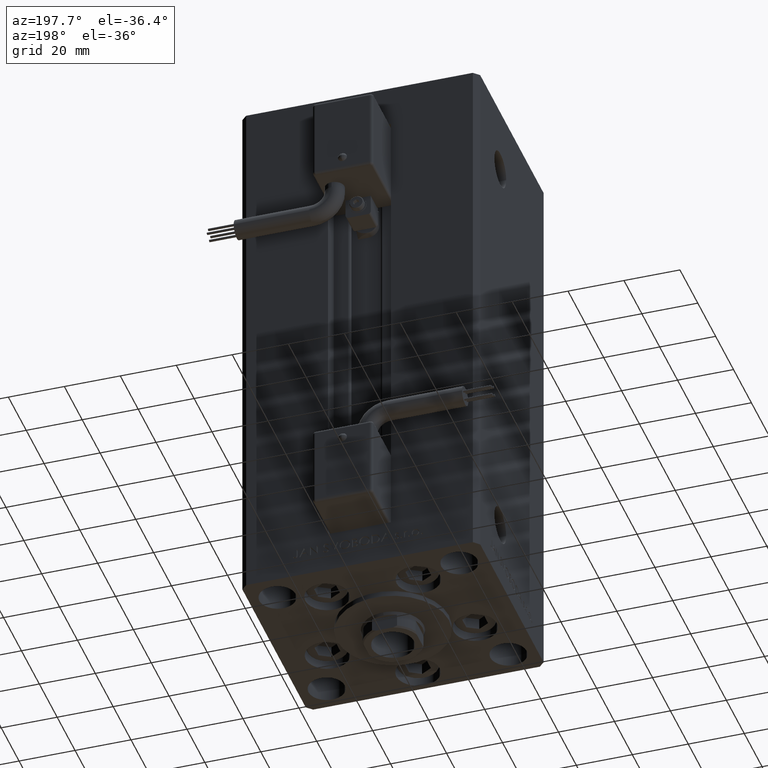
[diagram: clean part render]
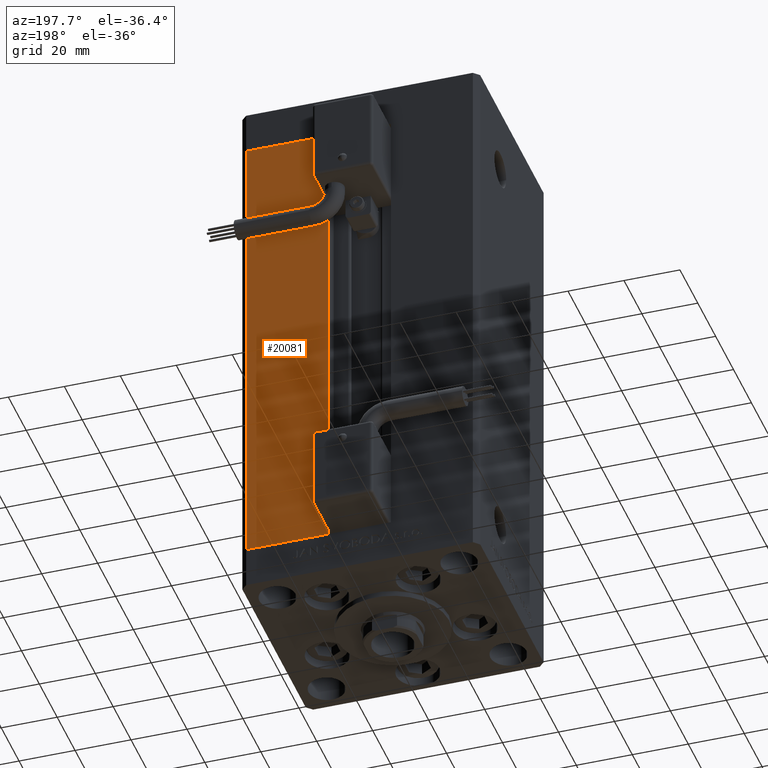
[diagram: same view with one face highlighted and labeled with its STEP entity id]
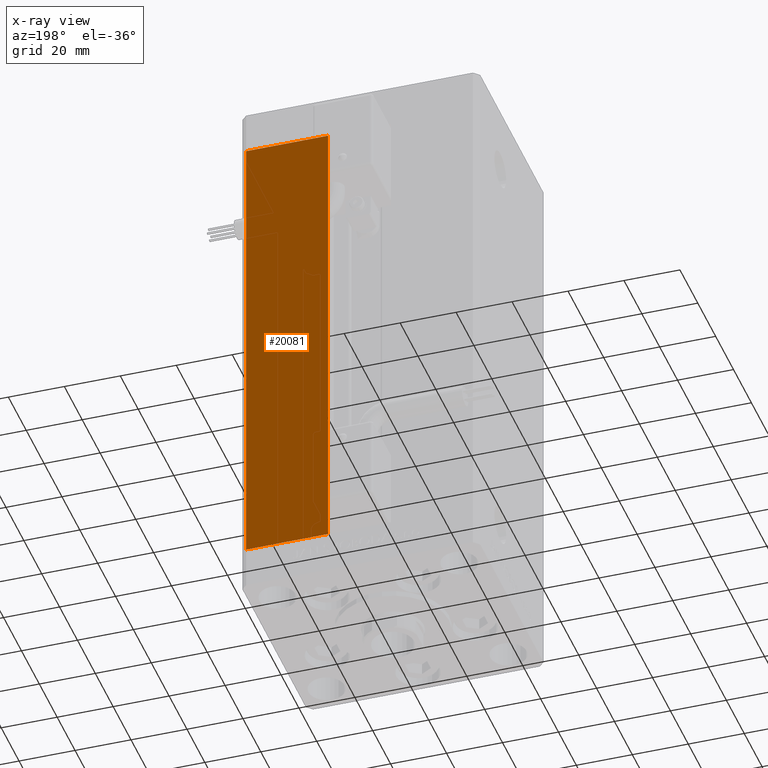
[diagram: x-ray of the same camera — body ghosted, the highlighted face saturated]
A machine part, auxiliary view. The second image highlights one B-rep face of the part: STEP entity #20081.
The next image is the same camera in x-ray: the body ghosted, the highlighted face saturated — about 0% of this face is hidden behind the body in this view.
In plain terms, the highlighted planar face has unit normal (-0, -1, 0).
Its self-contained STEP definition (entity closure, byte-faithful):
#85 = FACE_OUTER_BOUND ( 'NONE', #28359, .T. ) ;
#3827 = DIRECTION ( 'NONE',  ( -2.372271420139223331E-16, -1.000000000000000000, 0.000000000000000000 ) ) ;
#4072 = CARTESIAN_POINT ( 'NONE',  ( 40.50000000000000000, 37.50000000000000711, 0.000000000000000000 ) ) ;
#4902 = LINE ( 'NONE', #49915, #33139 ) ;
#6625 = ORIENTED_EDGE ( 'NONE', *, *, #23375, .T. ) ;
#8776 = VERTEX_POINT ( 'NONE', #16227 ) ;
#10746 = VECTOR ( 'NONE', #44434, 1000.000000000000000 ) ;
#11824 = DIRECTION ( 'NONE',  ( 1.000000000000000000, -2.372271420139223331E-16, 0.000000000000000000 ) ) ;
#15293 = CARTESIAN_POINT ( 'NONE',  ( -11.25000000000000000, 37.50000000000000000, 168.5000000000000000 ) ) ;
#16227 = CARTESIAN_POINT ( 'NONE',  ( 11.24999999999999289, 37.50000000000000000, 168.5000000000000000 ) ) ;
#16347 = PLANE ( 'NONE',  #50684 ) ;
#20081 = ADVANCED_FACE ( 'NONE', ( #85 ), #16347, .F. ) ;
#23375 = EDGE_CURVE ( 'NONE', #23933, #51672, #49135, .T. ) ;
#23933 = VERTEX_POINT ( 'NONE', #38133 ) ;
#24632 = CARTESIAN_POINT ( 'NONE',  ( 40.50000000000000000, 37.50000000000000711, 168.5000000000000000 ) ) ;
#25363 = EDGE_CURVE ( 'NONE', #8776, #23933, #35643, .T. ) ;
#25851 = DIRECTION ( 'NONE',  ( -0.000000000000000000, -0.000000000000000000, 1.000000000000000000 ) ) ;
#26608 = ORIENTED_EDGE ( 'NONE', *, *, #28981, .T. ) ;
#28359 = EDGE_LOOP ( 'NONE', ( #40313, #26608, #36533, #6625 ) ) ;
#28981 = EDGE_CURVE ( 'NONE', #46716, #8776, #46091, .T. ) ;
#33139 = VECTOR ( 'NONE', #45392, 1000.000000000000000 ) ;
#34097 = CARTESIAN_POINT ( 'NONE',  ( 11.25000000000000000, 37.50000000000000000, 0.000000000000000000 ) ) ;
#35593 = EDGE_CURVE ( 'NONE', #51672, #46716, #4902, .T. ) ;
#35643 = LINE ( 'NONE', #44173, #10746 ) ;
#36256 = CARTESIAN_POINT ( 'NONE',  ( 11.25000000000000000, 37.50000000000000000, 0.000000000000000000 ) ) ;
#36533 = ORIENTED_EDGE ( 'NONE', *, *, #25363, .T. ) ;
#37402 = DIRECTION ( 'NONE',  ( -0.000000000000000000, -0.000000000000000000, -1.000000000000000000 ) ) ;
#38133 = CARTESIAN_POINT ( 'NONE',  ( 40.50000000000000000, 37.50000000000000711, 168.5000000000000000 ) ) ;
#40313 = ORIENTED_EDGE ( 'NONE', *, *, #35593, .T. ) ;
#44173 = CARTESIAN_POINT ( 'NONE',  ( -11.25000000000000000, 37.50000000000000000, 168.5000000000000000 ) ) ;
#44434 = DIRECTION ( 'NONE',  ( 1.000000000000000000, 0.000000000000000000, 0.000000000000000000 ) ) ;
#45392 = DIRECTION ( 'NONE',  ( -1.000000000000000000, 2.372271420139223331E-16, 0.000000000000000000 ) ) ;
#46091 = LINE ( 'NONE', #34097, #46628 ) ;
#46628 = VECTOR ( 'NONE', #25851, 1000.000000000000000 ) ;
#46716 = VERTEX_POINT ( 'NONE', #36256 ) ;
#49135 = LINE ( 'NONE', #24632, #51514 ) ;
#49915 = CARTESIAN_POINT ( 'NONE',  ( -11.25000000000000000, 37.50000000000000000, 0.000000000000000000 ) ) ;
#50684 = AXIS2_PLACEMENT_3D ( 'NONE', #15293, #3827, #11824 ) ;
#51514 = VECTOR ( 'NONE', #37402, 1000.000000000000000 ) ;
#51672 = VERTEX_POINT ( 'NONE', #4072 ) ;